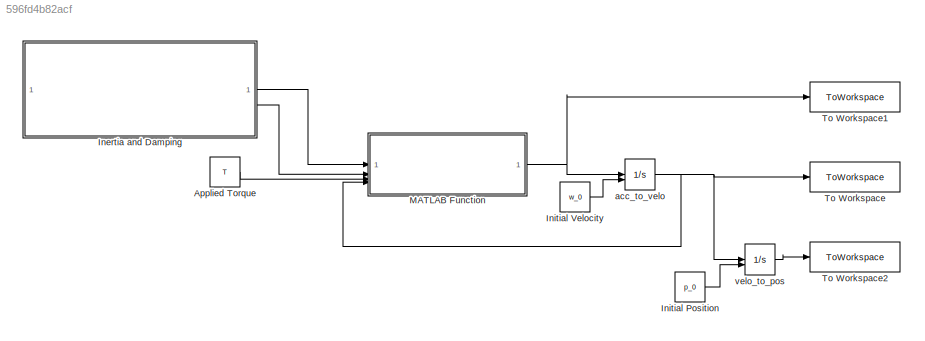
MODEL slx_596fd4b82acf
KIND model
CONFIG AbsTol = auto
CONFIG EnableMultiTasking = off
CONFIG FixedStep = auto
CONFIG MaxStep = auto
CONFIG MinStep = auto
CONFIG RelTol = 1e-3
CONFIG SampleTimeConstraint = Unconstrained
CONFIG SolverName = VariableStepAuto
CONFIG StartTime = 0.0
CONFIG StopTime = 25
WORKSPACE source: mxarray member
WORKSPACE J: Simulink.Parameter (value not decoded)
BLOCK [Constant] Applied Torque
  Value = T
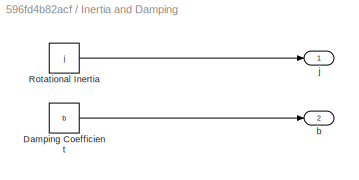
BLOCK [SubSystem] Inertia and Damping
BLOCK [Constant] Inertia and Damping/Damping Coefficient
  Value = b
BLOCK [Constant] Inertia and Damping/Rotational Inertia
  Value = j
BLOCK [Outport] Inertia and Damping/b
  Port = 2
BLOCK [Outport] Inertia and Damping/j
BLOCK [Constant] Initial Position
  Value = p_0
BLOCK [Constant] Initial Velocity
  Value = w_0
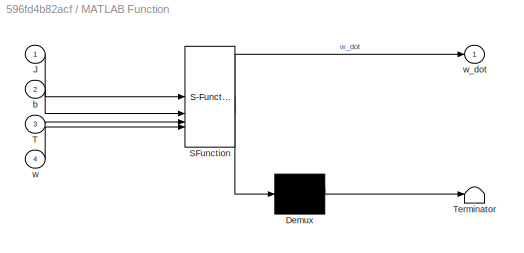
BLOCK [SubSystem] MATLAB Function
  ErrorFcn = Stateflow.Translate.translate
  PermitHierarchicalResolution = ExplicitOnly
  SFBlockType = MATLAB Function
  TreatAsAtomicUnit = on
BLOCK [Demux] MATLAB Function/ Demux 
  Outputs = 1
BLOCK [S-Function] MATLAB Function/ SFunction 
  EnableBusSupport = on
  FunctionName = sf_sfun
  PortCounts = [4 2]
  SFcnIsStateOwnerBlock = off
  SFunctionDeploymentMode = off
  Tag = Stateflow S-Function 2
BLOCK [Terminator] MATLAB Function/ Terminator 
BLOCK [Inport] MATLAB Function/J
BLOCK [Inport] MATLAB Function/T
  Port = 3
BLOCK [Inport] MATLAB Function/b
  Port = 2
BLOCK [Inport] MATLAB Function/w
  Port = 4
BLOCK [Outport] MATLAB Function/w_dot
BLOCK [ToWorkspace] To Workspace
  FixptAsFi = on
  MaxDataPoints = inf
  SampleTime = -1
  SaveFormat = Timeseries
  VariableName = ang_velo
BLOCK [ToWorkspace] To Workspace1
  FixptAsFi = on
  MaxDataPoints = inf
  SampleTime = -1
  SaveFormat = Timeseries
  VariableName = ang_acc
BLOCK [ToWorkspace] To Workspace2
  FixptAsFi = on
  MaxDataPoints = inf
  SampleTime = -1
  SaveFormat = Timeseries
  VariableName = ang_pos
BLOCK [Integrator] acc_to_velo
  InitialConditionSource = external
BLOCK [Integrator] velo_to_pos
  InitialConditionSource = external
LINE Applied Torque:1 -> MATLAB Function:3
LINE Inertia and Damping/Damping Coefficient:1 -> Inertia and Damping/b:1
LINE Inertia and Damping/Rotational Inertia:1 -> Inertia and Damping/j:1
LINE Inertia and Damping:1 -> MATLAB Function:1
LINE Inertia and Damping:2 -> MATLAB Function:2
LINE Initial Position:1 -> velo_to_pos:2
LINE Initial Velocity:1 -> acc_to_velo:2
NET MATLAB Function:1 -> To Workspace1:1, acc_to_velo:1
NET acc_to_velo:1 -> MATLAB Function:4, To Workspace:1, velo_to_pos:1
LINE velo_to_pos:1 -> To Workspace2:1
note: NET lines group one-source signal fan-out (src -> all destinations, sorted); 1:1 wires keep LINE
CHART MATLAB Function states=1 transitions=1
  STATE_LABEL 'eML_blk_kernel()'
  STATE_LABEL 'SCRIPT:\nfunction w_dot = fcn(J, b, T, w)\n\nw_dot = (1/J)*(T-(b*w));\n\nend\n\n\n\n'
CHART  states=0 transitions=0
